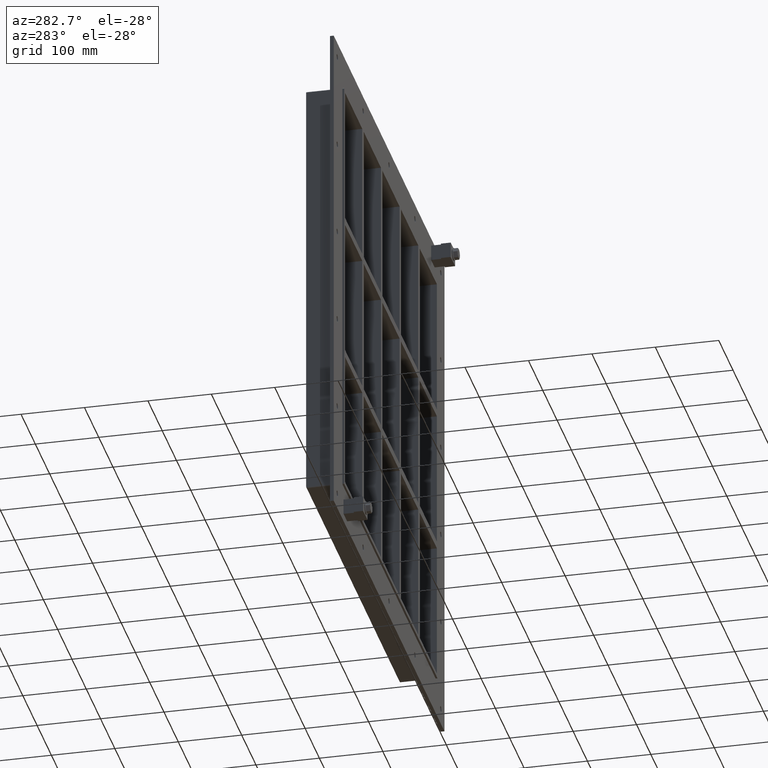
[diagram: clean part render]
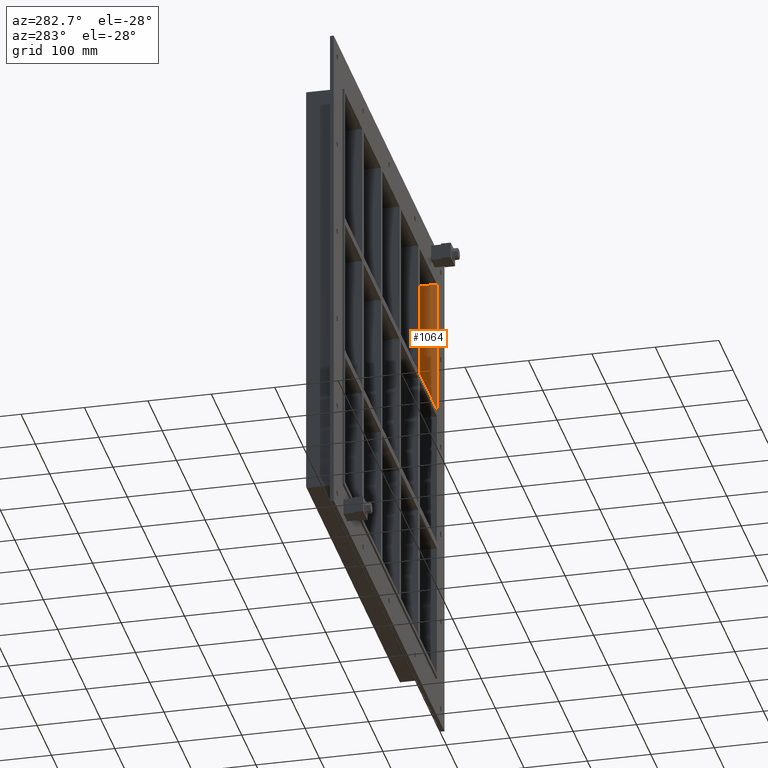
[diagram: same view with one face highlighted and labeled with its STEP entity id]
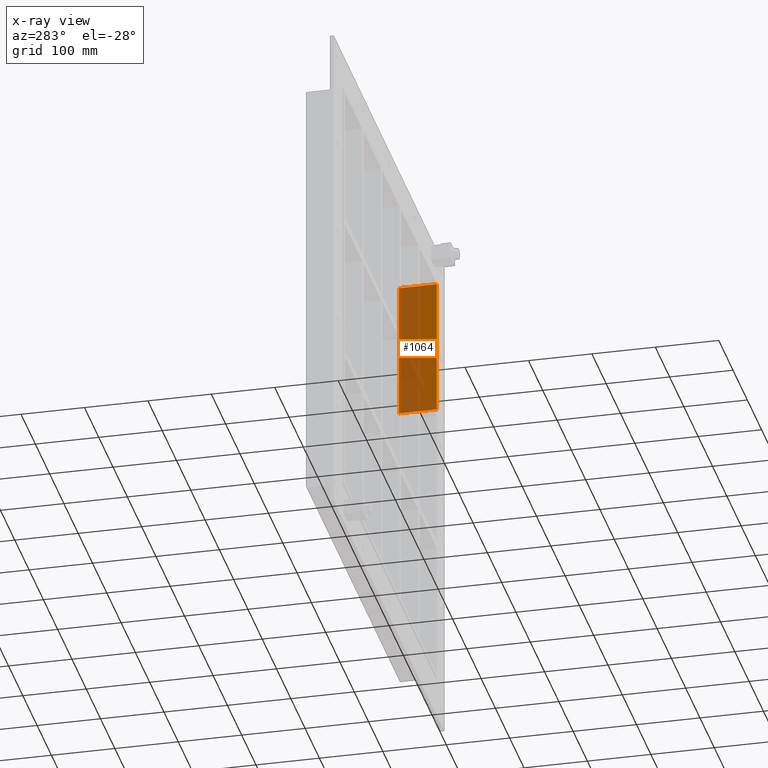
[diagram: x-ray of the same camera — body ghosted, the highlighted face saturated]
A machine part, auxiliary view. The second image highlights one B-rep face of the part: STEP entity #1064.
The next image is the same camera in x-ray: the body ghosted, the highlighted face saturated — about 56% of this face is hidden behind the body in this view.
In plain terms, the highlighted planar face has unit normal (1, 0, 0).
Its self-contained STEP definition (entity closure, byte-faithful):
#827=CARTESIAN_POINT('',(321.24999999999955,-3.0,121.00000000000023));
#828=VERTEX_POINT('',#827);
#835=CARTESIAN_POINT('',(321.24999999999955,57.0,121.00000000000023));
#836=VERTEX_POINT('',#835);
#837=CARTESIAN_POINT('',(321.25,57.000000000000007,121.00000000000023));
#838=DIRECTION('',(0.0,-1.0,0.0));
#839=VECTOR('',#838,60.000000000000007);
#840=LINE('',#837,#839);
#841=EDGE_CURVE('',#836,#828,#840,.T.);
#1034=CARTESIAN_POINT('',(321.25,0.0,339.00000000000006));
#1035=DIRECTION('',(1.0,0.0,0.0));
#1036=DIRECTION('',(0.0,0.0,-1.0));
#1037=AXIS2_PLACEMENT_3D('',#1034,#1035,#1036);
#1038=PLANE('',#1037);
#1039=ORIENTED_EDGE('',*,*,#841,.T.);
#1040=CARTESIAN_POINT('',(321.25,-3.0,339.00000000000006));
#1041=VERTEX_POINT('',#1040);
#1042=CARTESIAN_POINT('',(321.25,-3.0,339.00000000000006));
#1043=DIRECTION('',(0.0,0.0,-1.0));
#1044=VECTOR('',#1043,217.99999999999983);
#1045=LINE('',#1042,#1044);
#1046=EDGE_CURVE('',#1041,#828,#1045,.T.);
#1047=ORIENTED_EDGE('',*,*,#1046,.F.);
#1048=CARTESIAN_POINT('',(321.25,57.0,339.00000000000006));
#1049=VERTEX_POINT('',#1048);
#1050=CARTESIAN_POINT('',(321.25,-3.0,339.00000000000006));
#1051=DIRECTION('',(0.0,1.0,0.0));
#1052=VECTOR('',#1051,60.0);
#1053=LINE('',#1050,#1052);
#1054=EDGE_CURVE('',#1041,#1049,#1053,.T.);
#1055=ORIENTED_EDGE('',*,*,#1054,.T.);
#1056=CARTESIAN_POINT('',(321.25,57.0,121.00000000000023));
#1057=DIRECTION('',(0.0,0.0,1.0));
#1058=VECTOR('',#1057,217.99999999999983);
#1059=LINE('',#1056,#1058);
#1060=EDGE_CURVE('',#836,#1049,#1059,.T.);
#1061=ORIENTED_EDGE('',*,*,#1060,.F.);
#1062=EDGE_LOOP('',(#1039,#1047,#1055,#1061));
#1063=FACE_OUTER_BOUND('',#1062,.T.);
#1064=ADVANCED_FACE('',(#1063),#1038,.F.);